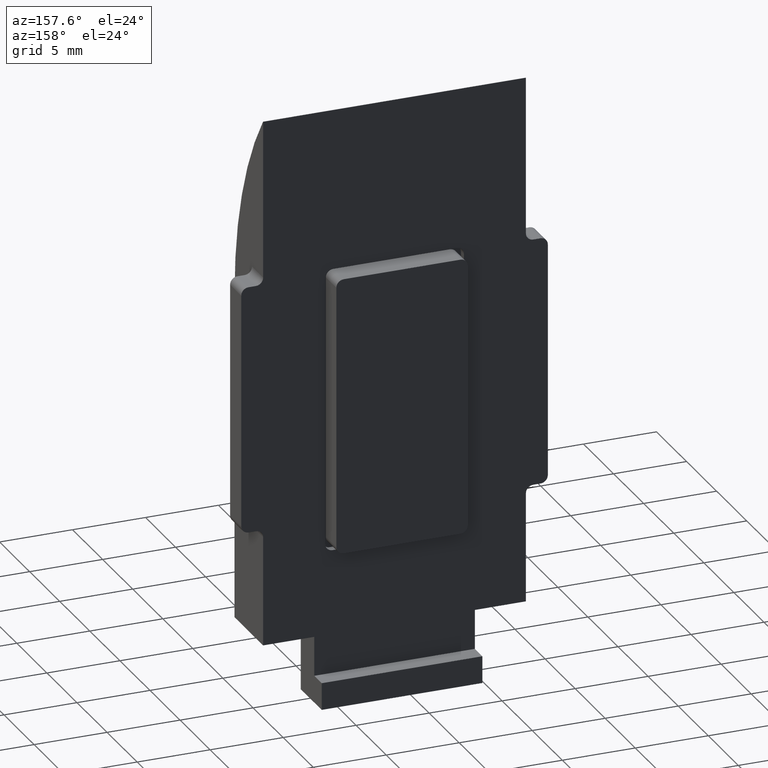
[diagram: clean part render]
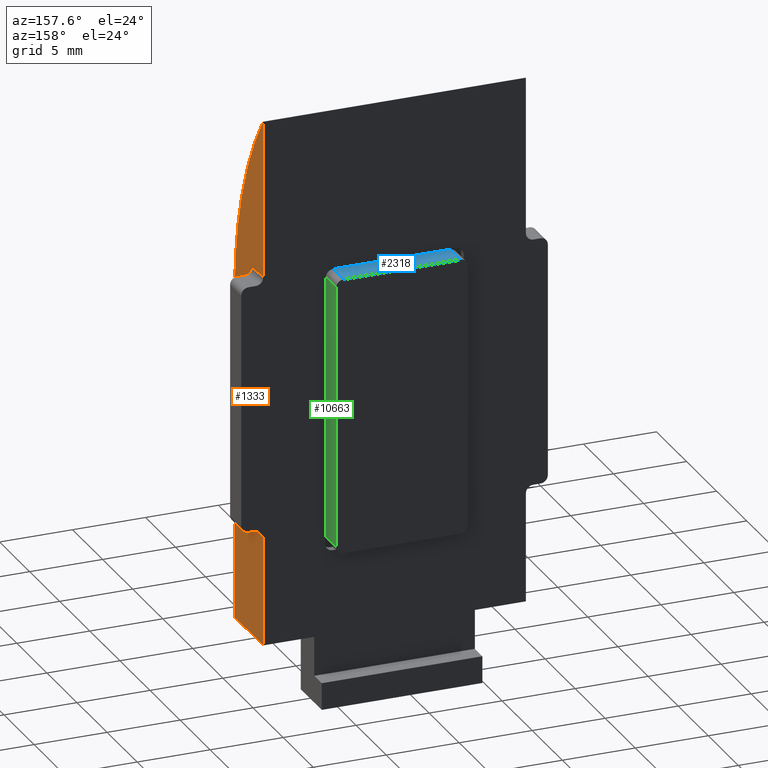
[diagram: same view with three faces highlighted in distinct colors, each labeled with its STEP entity id]
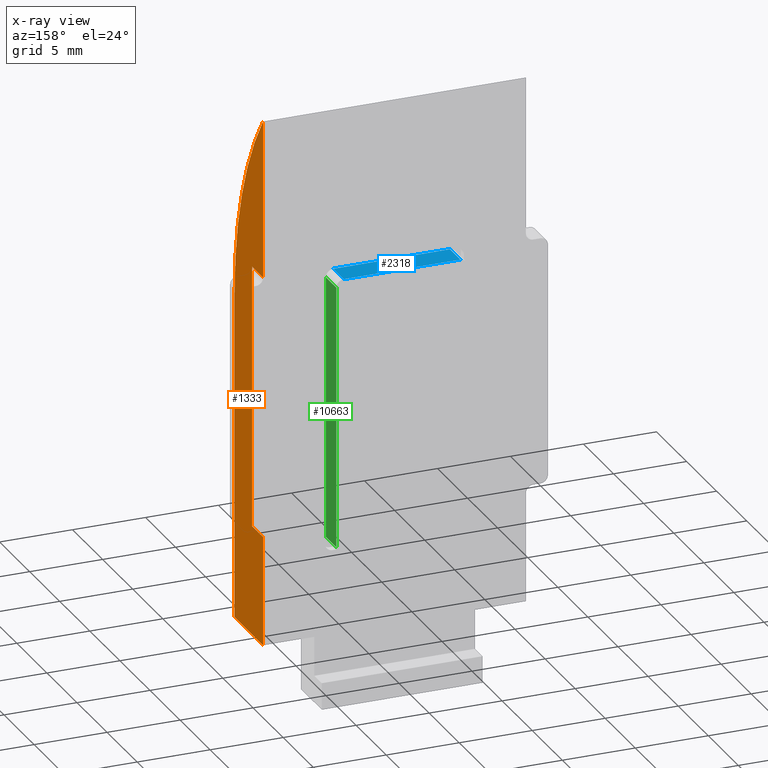
[diagram: x-ray of the same camera — body ghosted, the three highlighted faces saturated]
A machine part, auxiliary view with three faces highlighted in distinct colors.
The next image is the same camera in x-ray (body ghosted, the three faces saturated) — at least one of them is partly hidden behind the body in this view.
Their STEP definitions:

[orange] entity #1333 — the highlighted planar face has unit normal (1, 0, 0).
#925 = VECTOR ( 'NONE', #15763, 1000.000000000000000 ) ;
#1087 = CARTESIAN_POINT ( 'NONE',  ( 9.000000000000000000, 4.728956136456109682, 36.29999999999999716 ) ) ;
#1333 = ADVANCED_FACE ( 'NONE', ( #11302 ), #10768, .T. ) ;
#1471 = ORIENTED_EDGE ( 'NONE', *, *, #16349, .F. ) ;
#1584 = DIRECTION ( 'NONE',  ( 0.000000000000000000, 0.000000000000000000, -1.000000000000000000 ) ) ;
#1622 = CARTESIAN_POINT ( 'NONE',  ( 9.000000000000000000, -1.040834085586084257E-14, -2.081668171172168513E-14 ) ) ;
#2152 = ORIENTED_EDGE ( 'NONE', *, *, #15420, .T. ) ;
#2546 = VERTEX_POINT ( 'NONE', #1087 ) ;
#2705 = VERTEX_POINT ( 'NONE', #9885 ) ;
#2794 = VERTEX_POINT ( 'NONE', #12737 ) ;
#2844 = ORIENTED_EDGE ( 'NONE', *, *, #4687, .T. ) ;
#2934 = LINE ( 'NONE', #9497, #3772 ) ;
#3006 = CARTESIAN_POINT ( 'NONE',  ( 9.000000000000000000, -1.040834085586084257E-14, 0.000000000000000000 ) ) ;
#3555 = VERTEX_POINT ( 'NONE', #13065 ) ;
#3772 = VECTOR ( 'NONE', #3958, 1000.000000000000000 ) ;
#3958 = DIRECTION ( 'NONE',  ( -0.000000000000000000, 1.530638361156006245E-16, -1.000000000000000000 ) ) ;
#4439 = VECTOR ( 'NONE', #17418, 1000.000000000000000 ) ;
#4594 = LINE ( 'NONE', #14057, #7960 ) ;
#4613 = VECTOR ( 'NONE', #12220, 1000.000000000000000 ) ;
#4687 = EDGE_CURVE ( 'NONE', #5911, #17099, #13300, .T. ) ;
#4766 = EDGE_CURVE ( 'NONE', #15161, #3555, #2934, .T. ) ;
#4938 = CARTESIAN_POINT ( 'NONE',  ( 9.000000000000000000, 2.899999999999986589, 25.49999999999997868 ) ) ;
#5378 = DIRECTION ( 'NONE',  ( 1.000000000000000000, -0.000000000000000000, 0.000000000000000000 ) ) ;
#5393 = ORIENTED_EDGE ( 'NONE', *, *, #10250, .T. ) ;
#5418 = VERTEX_POINT ( 'NONE', #1622 ) ;
#5533 = CIRCLE ( 'NONE', #7154, 22.50000000000000711 ) ;
#5911 = VERTEX_POINT ( 'NONE', #9842 ) ;
#6252 = CARTESIAN_POINT ( 'NONE',  ( 9.000000000000000000, 0.000000000000000000, 7.499999999999975131 ) ) ;
#6768 = LINE ( 'NONE', #10317, #4439 ) ;
#6785 = CARTESIAN_POINT ( 'NONE',  ( 9.000000000000000000, 4.750000000000001776, 0.000000000000000000 ) ) ;
#6832 = VECTOR ( 'NONE', #9016, 1000.000000000000000 ) ;
#6923 = CARTESIAN_POINT ( 'NONE',  ( 9.000000000000000000, 0.000000000000000000, 0.000000000000000000 ) ) ;
#7154 = AXIS2_PLACEMENT_3D ( 'NONE', #13796, #16510, #16043 ) ;
#7605 = CARTESIAN_POINT ( 'NONE',  ( 9.000000000000000000, 4.749999999999997335, 36.29999999999999716 ) ) ;
#7705 = CARTESIAN_POINT ( 'NONE',  ( 9.000000000000000000, 4.750000000000000888, 7.499999999999975131 ) ) ;
#7887 = LINE ( 'NONE', #6252, #6832 ) ;
#7960 = VECTOR ( 'NONE', #8729, 1000.000000000000000 ) ;
#8729 = DIRECTION ( 'NONE',  ( 0.000000000000000000, -1.000000000000000000, -1.734723475976807094E-16 ) ) ;
#9016 = DIRECTION ( 'NONE',  ( -0.000000000000000000, -1.000000000000000000, -0.000000000000000000 ) ) ;
#9259 = EDGE_LOOP ( 'NONE', ( #2844, #12071, #16676, #5393, #9506, #12369, #2152, #1471, #13566 ) ) ;
#9497 = CARTESIAN_POINT ( 'NONE',  ( 9.000000000000000000, 2.899999999999988365, 7.999999999999976019 ) ) ;
#9506 = ORIENTED_EDGE ( 'NONE', *, *, #11330, .T. ) ;
#9673 = DIRECTION ( 'NONE',  ( 0.000000000000000000, -1.112002228190260459E-16, 1.000000000000000000 ) ) ;
#9842 = CARTESIAN_POINT ( 'NONE',  ( 9.000000000000000000, 4.750000000000001776, -2.081668171172168513E-14 ) ) ;
#9885 = CARTESIAN_POINT ( 'NONE',  ( 9.000000000000000000, 4.749999999999999112, 25.49999999999997868 ) ) ;
#10118 = LINE ( 'NONE', #12318, #16452 ) ;
#10250 = EDGE_CURVE ( 'NONE', #15161, #2705, #12724, .T. ) ;
#10317 = CARTESIAN_POINT ( 'NONE',  ( 9.000000000000000000, 0.000000000000000000, 36.29999999999999716 ) ) ;
#10484 = EDGE_CURVE ( 'NONE', #2546, #11184, #6768, .T. ) ;
#10768 = PLANE ( 'NONE',  #14208 ) ;
#11184 = VERTEX_POINT ( 'NONE', #7605 ) ;
#11302 = FACE_OUTER_BOUND ( 'NONE', #9259, .T. ) ;
#11330 = EDGE_CURVE ( 'NONE', #2705, #11184, #10118, .T. ) ;
#11871 = VECTOR ( 'NONE', #12696, 1000.000000000000000 ) ;
#11893 = EDGE_CURVE ( 'NONE', #5911, #5418, #4594, .T. ) ;
#12071 = ORIENTED_EDGE ( 'NONE', *, *, #15205, .T. ) ;
#12220 = DIRECTION ( 'NONE',  ( 0.000000000000000000, -1.112002228190260459E-16, 1.000000000000000000 ) ) ;
#12318 = CARTESIAN_POINT ( 'NONE',  ( 9.000000000000000000, 4.750000000000001776, 0.000000000000000000 ) ) ;
#12369 = ORIENTED_EDGE ( 'NONE', *, *, #10484, .F. ) ;
#12696 = DIRECTION ( 'NONE',  ( 0.000000000000000000, -1.541976423090493168E-16, 1.000000000000000000 ) ) ;
#12724 = LINE ( 'NONE', #16915, #925 ) ;
#12737 = CARTESIAN_POINT ( 'NONE',  ( 9.000000000000000000, -1.387778780781445676E-14, 22.50000000000001066 ) ) ;
#12742 = LINE ( 'NONE', #3006, #11871 ) ;
#13065 = CARTESIAN_POINT ( 'NONE',  ( 9.000000000000000000, 2.899999999999988365, 7.499999999999975131 ) ) ;
#13300 = LINE ( 'NONE', #6785, #4613 ) ;
#13566 = ORIENTED_EDGE ( 'NONE', *, *, #11893, .F. ) ;
#13796 = CARTESIAN_POINT ( 'NONE',  ( 9.000000000000000000, 22.49999999999999289, 22.50000000000001066 ) ) ;
#14057 = CARTESIAN_POINT ( 'NONE',  ( 9.000000000000000000, 0.000000000000000000, -2.081668171172168513E-14 ) ) ;
#14208 = AXIS2_PLACEMENT_3D ( 'NONE', #6923, #5378, #1584 ) ;
#15161 = VERTEX_POINT ( 'NONE', #4938 ) ;
#15205 = EDGE_CURVE ( 'NONE', #17099, #3555, #7887, .T. ) ;
#15420 = EDGE_CURVE ( 'NONE', #2546, #2794, #5533, .T. ) ;
#15763 = DIRECTION ( 'NONE',  ( 0.000000000000000000, 1.000000000000000000, -0.000000000000000000 ) ) ;
#16043 = DIRECTION ( 'NONE',  ( 0.000000000000000000, 0.000000000000000000, -1.000000000000000000 ) ) ;
#16349 = EDGE_CURVE ( 'NONE', #5418, #2794, #12742, .T. ) ;
#16452 = VECTOR ( 'NONE', #9673, 1000.000000000000000 ) ;
#16510 = DIRECTION ( 'NONE',  ( 1.000000000000000000, -0.000000000000000000, 0.000000000000000000 ) ) ;
#16676 = ORIENTED_EDGE ( 'NONE', *, *, #4766, .F. ) ;
#16915 = CARTESIAN_POINT ( 'NONE',  ( 9.000000000000000000, 0.000000000000000000, 25.49999999999997868 ) ) ;
#17099 = VERTEX_POINT ( 'NONE', #7705 ) ;
#17418 = DIRECTION ( 'NONE',  ( 0.000000000000000000, 1.000000000000000000, 0.000000000000000000 ) ) ;

[blue] entity #2318 — the highlighted planar face has unit normal (-0, -0, -1).
#434 = DIRECTION ( 'NONE',  ( -1.000000000000000000, -3.854941057726239083E-16, 0.000000000000000000 ) ) ;
#603 = ORIENTED_EDGE ( 'NONE', *, *, #10020, .T. ) ;
#909 = DIRECTION ( 'NONE',  ( -3.854941057726239083E-16, 1.000000000000000000, 0.000000000000000000 ) ) ;
#931 = VERTEX_POINT ( 'NONE', #14716 ) ;
#962 = VERTEX_POINT ( 'NONE', #14596 ) ;
#1085 = CARTESIAN_POINT ( 'NONE',  ( 19.00000000000000000, 0.000000000000000000, 0.000000000000000000 ) ) ;
#1527 = LINE ( 'NONE', #9730, #13778 ) ;
#1583 = FACE_OUTER_BOUND ( 'NONE', #16486, .T. ) ;
#1673 = CARTESIAN_POINT ( 'NONE',  ( 18.99999999999999289, 8.499999999999996447, 1.750000000000001554 ) ) ;
#2318 = ADVANCED_FACE ( 'NONE', ( #1583 ), #4651, .F. ) ;
#3661 = VECTOR ( 'NONE', #4444, 1000.000000000000000 ) ;
#4340 = VERTEX_POINT ( 'NONE', #1673 ) ;
#4444 = DIRECTION ( 'NONE',  ( -3.854941057726239083E-16, 1.000000000000000000, 0.000000000000000000 ) ) ;
#4464 = CARTESIAN_POINT ( 'NONE',  ( 19.00000000000000000, 0.000000000000000000, 1.750000000000001554 ) ) ;
#4651 = PLANE ( 'NONE',  #14663 ) ;
#6008 = DIRECTION ( 'NONE',  ( 3.854941057726239083E-16, -1.000000000000000000, 0.000000000000000000 ) ) ;
#6961 = CARTESIAN_POINT ( 'NONE',  ( 19.00000000000000000, 0.5000000000000004441, 0.000000000000000000 ) ) ;
#7172 = ORIENTED_EDGE ( 'NONE', *, *, #15579, .F. ) ;
#7249 = LINE ( 'NONE', #12553, #3661 ) ;
#7491 = DIRECTION ( 'NONE',  ( 0.000000000000000000, 0.000000000000000000, -1.000000000000000000 ) ) ;
#8216 = VERTEX_POINT ( 'NONE', #6961 ) ;
#9575 = LINE ( 'NONE', #1085, #15929 ) ;
#9730 = CARTESIAN_POINT ( 'NONE',  ( 18.99999999999999289, 8.499999999999996447, 1.750000000000001554 ) ) ;
#10020 = EDGE_CURVE ( 'NONE', #931, #4340, #1527, .T. ) ;
#10248 = EDGE_CURVE ( 'NONE', #962, #8216, #12958, .T. ) ;
#11989 = ORIENTED_EDGE ( 'NONE', *, *, #15154, .T. ) ;
#12553 = CARTESIAN_POINT ( 'NONE',  ( 19.00000000000000000, 0.000000000000000000, 1.750000000000001554 ) ) ;
#12958 = LINE ( 'NONE', #15589, #13570 ) ;
#13570 = VECTOR ( 'NONE', #7491, 1000.000000000000000 ) ;
#13778 = VECTOR ( 'NONE', #15042, 1000.000000000000000 ) ;
#14596 = CARTESIAN_POINT ( 'NONE',  ( 19.00000000000000000, 0.5000000000000004441, 1.750000000000001554 ) ) ;
#14663 = AXIS2_PLACEMENT_3D ( 'NONE', #4464, #434, #6008 ) ;
#14716 = CARTESIAN_POINT ( 'NONE',  ( 18.99999999999999289, 8.499999999999996447, 0.000000000000000000 ) ) ;
#15042 = DIRECTION ( 'NONE',  ( -0.000000000000000000, -0.000000000000000000, 1.000000000000000000 ) ) ;
#15154 = EDGE_CURVE ( 'NONE', #8216, #931, #9575, .T. ) ;
#15579 = EDGE_CURVE ( 'NONE', #962, #4340, #7249, .T. ) ;
#15589 = CARTESIAN_POINT ( 'NONE',  ( 19.00000000000000000, 0.5000000000000004441, 1.750000000000001554 ) ) ;
#15929 = VECTOR ( 'NONE', #909, 1000.000000000000000 ) ;
#16486 = EDGE_LOOP ( 'NONE', ( #11989, #603, #7172, #16936 ) ) ;
#16936 = ORIENTED_EDGE ( 'NONE', *, *, #10248, .T. ) ;

[green] entity #10663 — the highlighted planar face has unit normal (-1, -0, -0).
#364 = VERTEX_POINT ( 'NONE', #1067 ) ;
#856 = VERTEX_POINT ( 'NONE', #1613 ) ;
#923 = LINE ( 'NONE', #11372, #14812 ) ;
#1067 = CARTESIAN_POINT ( 'NONE',  ( 18.49999999999999289, 8.999999999999998224, 0.000000000000000000 ) ) ;
#1529 = DIRECTION ( 'NONE',  ( 1.000000000000000000, -9.130123557772669567E-17, 0.000000000000000000 ) ) ;
#1613 = CARTESIAN_POINT ( 'NONE',  ( 0.4999999999999970024, 9.000000000000000000, 0.000000000000000000 ) ) ;
#2140 = DIRECTION ( 'NONE',  ( -1.000000000000000000, 9.130123557772669567E-17, 0.000000000000000000 ) ) ;
#2673 = DIRECTION ( 'NONE',  ( -1.000000000000000000, 9.130123557772669567E-17, 0.000000000000000000 ) ) ;
#2769 = CARTESIAN_POINT ( 'NONE',  ( 18.49999999999999289, 8.999999999999998224, 1.750000000000001554 ) ) ;
#2884 = ORIENTED_EDGE ( 'NONE', *, *, #16846, .F. ) ;
#2972 = EDGE_LOOP ( 'NONE', ( #3283, #15472, #2884, #5513 ) ) ;
#3283 = ORIENTED_EDGE ( 'NONE', *, *, #10359, .T. ) ;
#3789 = LINE ( 'NONE', #16921, #17330 ) ;
#4228 = EDGE_CURVE ( 'NONE', #856, #9864, #9063, .T. ) ;
#5276 = CARTESIAN_POINT ( 'NONE',  ( 18.99999999999999289, 8.999999999999998224, 0.000000000000000000 ) ) ;
#5450 = VECTOR ( 'NONE', #5527, 1000.000000000000000 ) ;
#5513 = ORIENTED_EDGE ( 'NONE', *, *, #11140, .T. ) ;
#5527 = DIRECTION ( 'NONE',  ( -0.000000000000000000, -0.000000000000000000, 1.000000000000000000 ) ) ;
#6163 = VERTEX_POINT ( 'NONE', #2769 ) ;
#7615 = LINE ( 'NONE', #5276, #14603 ) ;
#9063 = LINE ( 'NONE', #13658, #5450 ) ;
#9864 = VERTEX_POINT ( 'NONE', #17517 ) ;
#10359 = EDGE_CURVE ( 'NONE', #364, #856, #7615, .T. ) ;
#10663 = ADVANCED_FACE ( 'NONE', ( #15228 ), #11002, .F. ) ;
#10953 = CARTESIAN_POINT ( 'NONE',  ( 18.99999999999999289, 8.999999999999998224, 1.750000000000001554 ) ) ;
#11002 = PLANE ( 'NONE',  #15961 ) ;
#11140 = EDGE_CURVE ( 'NONE', #6163, #364, #3789, .T. ) ;
#11372 = CARTESIAN_POINT ( 'NONE',  ( 18.99999999999999289, 8.999999999999998224, 1.750000000000001554 ) ) ;
#13019 = DIRECTION ( 'NONE',  ( 0.000000000000000000, 0.000000000000000000, -1.000000000000000000 ) ) ;
#13658 = CARTESIAN_POINT ( 'NONE',  ( 0.4999999999999970024, 9.000000000000000000, 1.749999999999999778 ) ) ;
#14603 = VECTOR ( 'NONE', #2673, 1000.000000000000000 ) ;
#14812 = VECTOR ( 'NONE', #2140, 1000.000000000000000 ) ;
#15228 = FACE_OUTER_BOUND ( 'NONE', #2972, .T. ) ;
#15472 = ORIENTED_EDGE ( 'NONE', *, *, #4228, .T. ) ;
#15961 = AXIS2_PLACEMENT_3D ( 'NONE', #10953, #17549, #1529 ) ;
#16846 = EDGE_CURVE ( 'NONE', #6163, #9864, #923, .T. ) ;
#16921 = CARTESIAN_POINT ( 'NONE',  ( 18.49999999999999289, 8.999999999999998224, 1.750000000000001554 ) ) ;
#17330 = VECTOR ( 'NONE', #13019, 1000.000000000000000 ) ;
#17517 = CARTESIAN_POINT ( 'NONE',  ( 0.4999999999999970024, 9.000000000000000000, 1.749999999999999778 ) ) ;
#17549 = DIRECTION ( 'NONE',  ( -9.130123557772669567E-17, -1.000000000000000000, 0.000000000000000000 ) ) ;